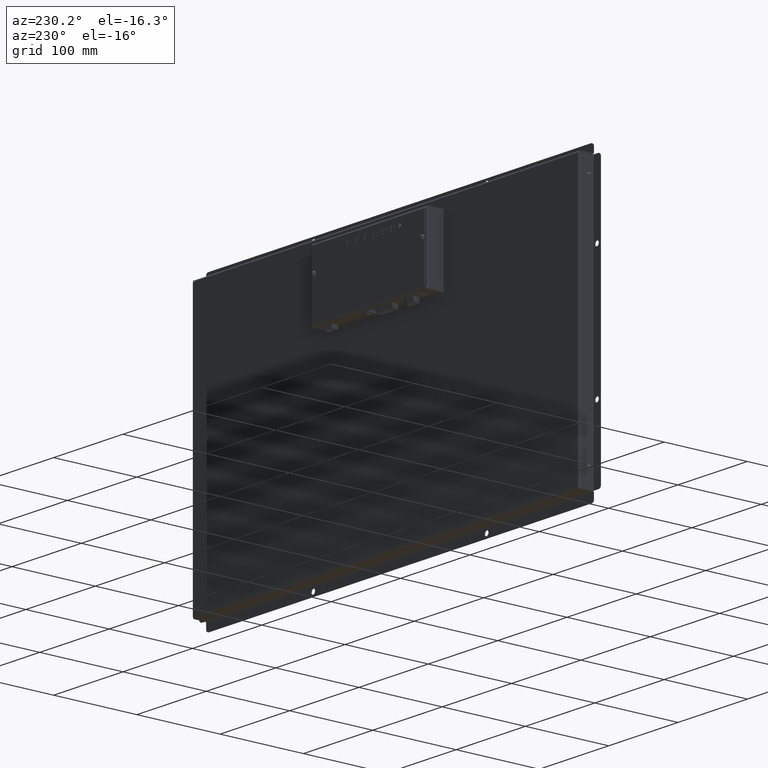
[diagram: clean part render]
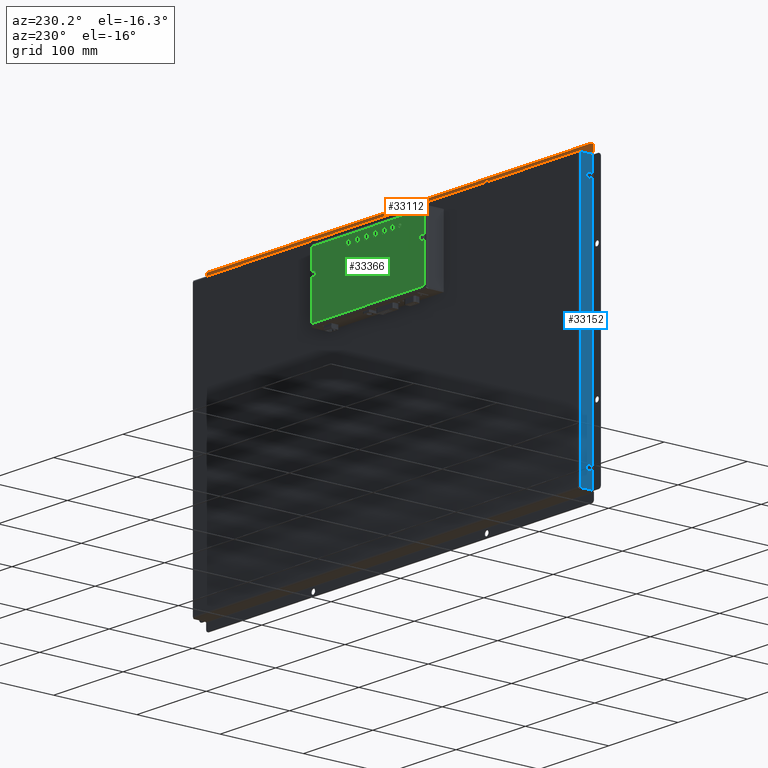
[diagram: same view with three faces highlighted in distinct colors, each labeled with its STEP entity id]
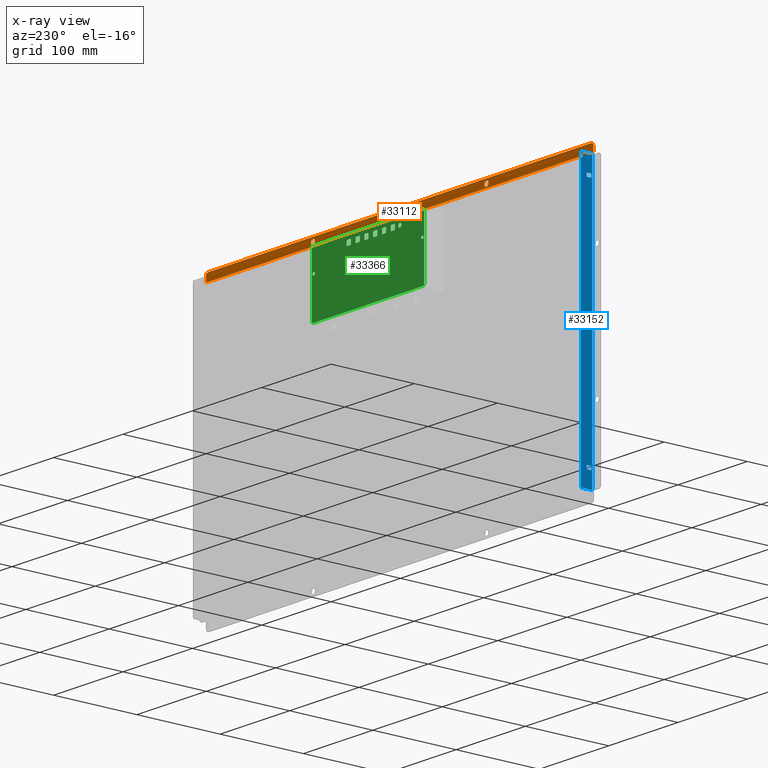
[diagram: x-ray of the same camera — body ghosted, the three highlighted faces saturated]
A machine part, auxiliary view with three faces highlighted in distinct colors.
The next image is the same camera in x-ray (body ghosted, the three faces saturated) — at least one of them is partly hidden behind the body in this view.
Their STEP definitions:

[orange] entity #33112 — the highlighted planar face has unit normal (0, 1, 0).
#1282=FACE_BOUND('',#3597,.T.);
#1283=FACE_BOUND('',#3598,.T.);
#1709=FACE_OUTER_BOUND('',#3596,.T.);
#3596=EDGE_LOOP('',(#21834,#21835,#21836,#21837,#21838,#21839));
#3597=EDGE_LOOP('',(#21840));
#3598=EDGE_LOOP('',(#21841));
#5885=LINE('',#48627,#9038);
#5888=LINE('',#48633,#9041);
#5889=LINE('',#48635,#9042);
#5890=LINE('',#48637,#9043);
#9038=VECTOR('',#39291,10.);
#9041=VECTOR('',#39296,10.);
#9042=VECTOR('',#39297,10.);
#9043=VECTOR('',#39298,10.);
#12035=CIRCLE('',#35566,3.);
#12038=CIRCLE('',#35570,3.);
#12056=CIRCLE('',#35600,3.);
#12057=CIRCLE('',#35603,3.);
#13493=VERTEX_POINT('',#48527);
#13496=VERTEX_POINT('',#48535);
#13528=VERTEX_POINT('',#48620);
#13529=VERTEX_POINT('',#48622);
#13530=VERTEX_POINT('',#48626);
#13532=VERTEX_POINT('',#48632);
#13533=VERTEX_POINT('',#48634);
#13534=VERTEX_POINT('',#48636);
#16782=EDGE_CURVE('',#13493,#13493,#12035,.T.);
#16786=EDGE_CURVE('',#13496,#13496,#12038,.T.);
#16827=EDGE_CURVE('',#13528,#13529,#12056,.T.);
#16829=EDGE_CURVE('',#13530,#13529,#5885,.T.);
#16832=EDGE_CURVE('',#13532,#13528,#5888,.T.);
#16833=EDGE_CURVE('',#13532,#13533,#5889,.T.);
#16834=EDGE_CURVE('',#13533,#13534,#5890,.T.);
#16835=EDGE_CURVE('',#13530,#13534,#12057,.T.);
#21834=ORIENTED_EDGE('',*,*,#16827,.F.);
#21835=ORIENTED_EDGE('',*,*,#16832,.F.);
#21836=ORIENTED_EDGE('',*,*,#16833,.T.);
#21837=ORIENTED_EDGE('',*,*,#16834,.T.);
#21838=ORIENTED_EDGE('',*,*,#16835,.F.);
#21839=ORIENTED_EDGE('',*,*,#16829,.T.);
#21840=ORIENTED_EDGE('',*,*,#16782,.T.);
#21841=ORIENTED_EDGE('',*,*,#16786,.T.);
#30738=PLANE('',#35602);
#33112=ADVANCED_FACE('',(#1709,#1282,#1283),#30738,.T.);
#35566=AXIS2_PLACEMENT_3D('',#48529,#39194,#39195);
#35570=AXIS2_PLACEMENT_3D('',#48537,#39203,#39204);
#35600=AXIS2_PLACEMENT_3D('',#48623,#39286,#39287);
#35602=AXIS2_PLACEMENT_3D('',#48631,#39294,#39295);
#35603=AXIS2_PLACEMENT_3D('',#48638,#39299,#39300);
#39194=DIRECTION('center_axis',(-3.84474391424396E-16,-3.09974164042484E-14,
-1.));
#39195=DIRECTION('ref_axis',(1.,-7.41513365530766E-31,3.82358215767803E-19));
#39203=DIRECTION('center_axis',(-3.84474391424396E-16,-3.09974164042484E-14,
-1.));
#39204=DIRECTION('ref_axis',(1.,-7.41513365530766E-31,3.82358215767803E-19));
#39286=DIRECTION('center_axis',(-3.84474391424396E-16,-3.09974164042484E-14,
-1.));
#39287=DIRECTION('ref_axis',(-0.707106781186589,0.707106781186506,-2.19812944215738E-14));
#39291=DIRECTION('',(-1.,-3.84474391424387E-16,3.84474391424408E-16));
#39294=DIRECTION('center_axis',(3.84474391424396E-16,3.09974164042484E-14,
1.));
#39295=DIRECTION('ref_axis',(3.84474391424399E-16,-1.,3.09974164042484E-14));
#39296=DIRECTION('',(-1.10329574491398E-13,1.,-2.46494594083834E-14));
#39297=DIRECTION('',(1.,3.84474391424387E-16,-3.84474391424408E-16));
#39298=DIRECTION('',(4.67348542228502E-14,1.,-2.46494594083835E-14));
#39299=DIRECTION('center_axis',(-3.84474391424396E-16,-3.09974164042484E-14,
-1.));
#39300=DIRECTION('ref_axis',(0.707106781186547,0.707106781186547,-2.19812944215725E-14));
#48527=CARTESIAN_POINT('',(-128.,168.,-16.0000000000001));
#48529=CARTESIAN_POINT('Origin',(-125.,168.,-16.0000000000001));
#48535=CARTESIAN_POINT('',(122.,168.,-16.0000000000001));
#48537=CARTESIAN_POINT('Origin',(125.,168.,-16.0000000000001));
#48620=CARTESIAN_POINT('',(-279.,169.999999999999,-16.));
#48622=CARTESIAN_POINT('',(-276.,173.,-16.0000000000001));
#48623=CARTESIAN_POINT('Origin',(-276.,170.,-16.));
#48626=CARTESIAN_POINT('',(276.,173.,-16.0000000000003));
#48627=CARTESIAN_POINT('',(279.,173.,-16.0000000000003));
#48631=CARTESIAN_POINT('Origin',(2.04744808841653E-13,167.169026644708,
-16.));
#48632=CARTESIAN_POINT('',(-279.,163.6,-15.9999999999998));
#48633=CARTESIAN_POINT('',(-279.,161.338053289415,-15.9999999999998));
#48634=CARTESIAN_POINT('',(279.,163.6,-16.));
#48635=CARTESIAN_POINT('',(2.0944767726273E-13,163.6,-15.9999999999999));
#48636=CARTESIAN_POINT('',(279.,170.,-16.0000000000002));
#48637=CARTESIAN_POINT('',(279.,161.338053289415,-16.));
#48638=CARTESIAN_POINT('Origin',(276.,170.,-16.0000000000002));

[blue] entity #33152 — the highlighted planar face has unit normal (-1, 0, -0).
#1294=FACE_BOUND('',#3649,.T.);
#1295=FACE_BOUND('',#3650,.T.);
#1749=FACE_OUTER_BOUND('',#3648,.T.);
#3648=EDGE_LOOP('',(#22026,#22027,#22028,#22029));
#3649=EDGE_LOOP('',(#22030,#22031,#22032,#22033,#22034,#22035,#22036,#22037));
#3650=EDGE_LOOP('',(#22038,#22039,#22040,#22041,#22042,#22043,#22044,#22045));
#5715=LINE('',#48031,#8868);
#5719=LINE('',#48043,#8872);
#5723=LINE('',#48055,#8876);
#5727=LINE('',#48066,#8880);
#5731=LINE('',#48079,#8884);
#5735=LINE('',#48091,#8888);
#5739=LINE('',#48103,#8892);
#5743=LINE('',#48114,#8896);
#5940=LINE('',#48775,#9093);
#5948=LINE('',#48800,#9101);
#5951=LINE('',#48806,#9104);
#5952=LINE('',#48807,#9105);
#8868=VECTOR('',#38685,10.);
#8872=VECTOR('',#38697,10.);
#8876=VECTOR('',#38709,10.);
#8880=VECTOR('',#38721,10.);
#8884=VECTOR('',#38733,10.);
#8888=VECTOR('',#38745,10.);
#8892=VECTOR('',#38757,10.);
#8896=VECTOR('',#38769,10.);
#9093=VECTOR('',#39450,10.);
#9101=VECTOR('',#39480,10.);
#9104=VECTOR('',#39485,10.);
#9105=VECTOR('',#39486,10.);
#11928=CIRCLE('',#35381,1.);
#11930=CIRCLE('',#35385,1.);
#11932=CIRCLE('',#35389,1.);
#11934=CIRCLE('',#35393,1.);
#11936=CIRCLE('',#35397,1.);
#11938=CIRCLE('',#35401,1.);
#11940=CIRCLE('',#35405,1.);
#11942=CIRCLE('',#35409,1.);
#13318=VERTEX_POINT('',#48021);
#13319=VERTEX_POINT('',#48022);
#13322=VERTEX_POINT('',#48030);
#13324=VERTEX_POINT('',#48036);
#13326=VERTEX_POINT('',#48042);
#13328=VERTEX_POINT('',#48048);
#13330=VERTEX_POINT('',#48054);
#13332=VERTEX_POINT('',#48060);
#13334=VERTEX_POINT('',#48069);
#13335=VERTEX_POINT('',#48070);
#13338=VERTEX_POINT('',#48078);
#13340=VERTEX_POINT('',#48084);
#13342=VERTEX_POINT('',#48090);
#13344=VERTEX_POINT('',#48096);
#13346=VERTEX_POINT('',#48102);
#13348=VERTEX_POINT('',#48108);
#13570=VERTEX_POINT('',#48766);
#13571=VERTEX_POINT('',#48770);
#13577=VERTEX_POINT('',#48799);
#13579=VERTEX_POINT('',#48805);
#16528=EDGE_CURVE('',#13318,#13319,#11928,.T.);
#16532=EDGE_CURVE('',#13322,#13318,#5715,.T.);
#16535=EDGE_CURVE('',#13324,#13322,#11930,.T.);
#16538=EDGE_CURVE('',#13326,#13324,#5719,.T.);
#16541=EDGE_CURVE('',#13328,#13326,#11932,.T.);
#16544=EDGE_CURVE('',#13330,#13328,#5723,.T.);
#16547=EDGE_CURVE('',#13332,#13330,#11934,.T.);
#16550=EDGE_CURVE('',#13319,#13332,#5727,.T.);
#16552=EDGE_CURVE('',#13334,#13335,#11936,.T.);
#16556=EDGE_CURVE('',#13338,#13334,#5731,.T.);
#16559=EDGE_CURVE('',#13340,#13338,#11938,.T.);
#16562=EDGE_CURVE('',#13342,#13340,#5735,.T.);
#16565=EDGE_CURVE('',#13344,#13342,#11940,.T.);
#16568=EDGE_CURVE('',#13346,#13344,#5739,.T.);
#16571=EDGE_CURVE('',#13348,#13346,#11942,.T.);
#16574=EDGE_CURVE('',#13335,#13348,#5743,.T.);
#16903=EDGE_CURVE('',#13570,#13571,#5940,.T.);
#16915=EDGE_CURVE('',#13570,#13577,#5948,.T.);
#16918=EDGE_CURVE('',#13571,#13579,#5951,.T.);
#16919=EDGE_CURVE('',#13579,#13577,#5952,.T.);
#22026=ORIENTED_EDGE('',*,*,#16903,.T.);
#22027=ORIENTED_EDGE('',*,*,#16918,.T.);
#22028=ORIENTED_EDGE('',*,*,#16919,.T.);
#22029=ORIENTED_EDGE('',*,*,#16915,.F.);
#22030=ORIENTED_EDGE('',*,*,#16528,.T.);
#22031=ORIENTED_EDGE('',*,*,#16550,.T.);
#22032=ORIENTED_EDGE('',*,*,#16547,.T.);
#22033=ORIENTED_EDGE('',*,*,#16544,.T.);
#22034=ORIENTED_EDGE('',*,*,#16541,.T.);
#22035=ORIENTED_EDGE('',*,*,#16538,.T.);
#22036=ORIENTED_EDGE('',*,*,#16535,.T.);
#22037=ORIENTED_EDGE('',*,*,#16532,.T.);
#22038=ORIENTED_EDGE('',*,*,#16552,.T.);
#22039=ORIENTED_EDGE('',*,*,#16574,.T.);
#22040=ORIENTED_EDGE('',*,*,#16571,.T.);
#22041=ORIENTED_EDGE('',*,*,#16568,.T.);
#22042=ORIENTED_EDGE('',*,*,#16565,.T.);
#22043=ORIENTED_EDGE('',*,*,#16562,.T.);
#22044=ORIENTED_EDGE('',*,*,#16559,.T.);
#22045=ORIENTED_EDGE('',*,*,#16556,.T.);
#30766=PLANE('',#35665);
#33152=ADVANCED_FACE('',(#1749,#1294,#1295),#30766,.T.);
#35381=AXIS2_PLACEMENT_3D('',#48023,#38677,#38678);
#35385=AXIS2_PLACEMENT_3D('',#48037,#38690,#38691);
#35389=AXIS2_PLACEMENT_3D('',#48049,#38702,#38703);
#35393=AXIS2_PLACEMENT_3D('',#48061,#38714,#38715);
#35397=AXIS2_PLACEMENT_3D('',#48071,#38725,#38726);
#35401=AXIS2_PLACEMENT_3D('',#48085,#38738,#38739);
#35405=AXIS2_PLACEMENT_3D('',#48097,#38750,#38751);
#35409=AXIS2_PLACEMENT_3D('',#48109,#38762,#38763);
#35665=AXIS2_PLACEMENT_3D('',#48804,#39483,#39484);
#38677=DIRECTION('center_axis',(-1.,5.65645038078669E-16,-3.51218148744263E-15));
#38678=DIRECTION('ref_axis',(-7.39557098644699E-31,-1.,2.22560188373E-16));
#38685=DIRECTION('',(-5.6564503807867E-16,-1.,2.22560188372998E-16));
#38690=DIRECTION('center_axis',(-1.,5.65645038078669E-16,-3.51218148744263E-15));
#38691=DIRECTION('ref_axis',(3.33066907387542E-15,-2.22560188373E-16,-1.));
#38697=DIRECTION('',(3.51218148744263E-15,-1.33278321299816E-15,-1.));
#38702=DIRECTION('center_axis',(-1.,5.65645038078669E-16,-3.51218148744263E-15));
#38703=DIRECTION('ref_axis',(7.39557098644699E-31,1.,-2.22560188373E-16));
#38709=DIRECTION('',(5.65645038078672E-16,1.,-7.77671700685577E-16));
#38714=DIRECTION('center_axis',(-1.,5.65645038078669E-16,-3.51218148744263E-15));
#38715=DIRECTION('ref_axis',(-3.33066907387542E-15,2.22560188373E-16,1.));
#38721=DIRECTION('',(-3.51218148744263E-15,-3.32551323939578E-16,1.));
#38725=DIRECTION('center_axis',(-1.,5.65645038078669E-16,-3.51218148744263E-15));
#38726=DIRECTION('ref_axis',(-7.39557098644699E-31,-1.,2.22560188373E-16));
#38733=DIRECTION('',(-5.65645038078666E-16,-1.,-8.87662836252182E-16));
#38738=DIRECTION('center_axis',(-1.,5.65645038078669E-16,-3.51218148744263E-15));
#38739=DIRECTION('ref_axis',(3.33066907387542E-15,-2.22560188373E-16,-1.));
#38745=DIRECTION('',(3.51218148744263E-15,-2.22560188373E-16,-1.));
#38750=DIRECTION('center_axis',(-1.,5.65645038078669E-16,-3.51218148744263E-15));
#38751=DIRECTION('ref_axis',(7.39557098644699E-31,1.,-2.22560188373E-16));
#38757=DIRECTION('',(5.65645038078672E-16,1.,-7.77671700685589E-16));
#38762=DIRECTION('center_axis',(-1.,5.65645038078669E-16,-3.51218148744263E-15));
#38763=DIRECTION('ref_axis',(-3.33066907387542E-15,2.22560188373E-16,1.));
#38769=DIRECTION('',(-3.51218148744263E-15,2.22560188373E-16,1.));
#39450=DIRECTION('',(5.6564503807867E-16,1.,-2.19982271133159E-16));
#39480=DIRECTION('',(-2.22044604925032E-15,-2.44249065417535E-14,1.));
#39483=DIRECTION('center_axis',(1.,-5.65645038078669E-16,3.51218148744263E-15));
#39484=DIRECTION('ref_axis',(3.51218148744263E-15,3.29769215235194E-16,
-1.));
#39485=DIRECTION('',(5.10702591327543E-14,3.5527136788003E-14,1.));
#39486=DIRECTION('',(-5.65645038078669E-16,-1.,-1.27144212204358E-30));
#48021=CARTESIAN_POINT('',(279.,-141.599999999999,-13.9999999999906));
#48022=CARTESIAN_POINT('',(279.,-142.599999999999,-12.9999999999906));
#48023=CARTESIAN_POINT('Origin',(279.,-141.599999999999,-12.9999999999906));
#48030=CARTESIAN_POINT('',(279.,-139.599999999999,-13.9999999999906));
#48031=CARTESIAN_POINT('',(279.,-69.7999999999997,-13.9999999999906));
#48036=CARTESIAN_POINT('',(279.,-138.599999999999,-12.9999999999906));
#48037=CARTESIAN_POINT('Origin',(279.,-139.599999999999,-12.9999999999906));
#48042=CARTESIAN_POINT('',(279.,-138.599999999999,-8.99999999999055));
#48043=CARTESIAN_POINT('',(279.,-138.599999999999,-8.43451332234901));
#48048=CARTESIAN_POINT('',(279.,-139.599999999999,-7.99999999999056));
#48049=CARTESIAN_POINT('Origin',(279.,-139.599999999999,-8.99999999999055));
#48054=CARTESIAN_POINT('',(279.,-141.599999999999,-7.99999999999055));
#48055=CARTESIAN_POINT('',(279.,-70.7999999999997,-7.99999999999061));
#48060=CARTESIAN_POINT('',(279.,-142.599999999999,-8.99999999999055));
#48061=CARTESIAN_POINT('Origin',(279.,-141.599999999999,-8.99999999999055));
#48066=CARTESIAN_POINT('',(279.,-142.599999999999,-10.4345133223491));
#48069=CARTESIAN_POINT('',(279.,139.6,-14.0000000000081));
#48070=CARTESIAN_POINT('',(279.,138.6,-13.0000000000081));
#48071=CARTESIAN_POINT('Origin',(279.,139.6,-13.0000000000081));
#48078=CARTESIAN_POINT('',(279.,141.6,-14.0000000000081));
#48079=CARTESIAN_POINT('',(279.,70.7999999999998,-14.0000000000081));
#48084=CARTESIAN_POINT('',(279.,142.6,-13.0000000000081));
#48085=CARTESIAN_POINT('Origin',(279.,141.6,-13.0000000000081));
#48090=CARTESIAN_POINT('',(279.,142.6,-8.99999999999062));
#48091=CARTESIAN_POINT('',(279.,142.6,-8.43451332234915));
#48096=CARTESIAN_POINT('',(279.,141.6,-7.99999999999062));
#48097=CARTESIAN_POINT('Origin',(279.,141.6,-8.99999999999062));
#48102=CARTESIAN_POINT('',(279.,139.6,-7.99999999999061));
#48103=CARTESIAN_POINT('',(279.,69.7999999999999,-7.99999999999056));
#48108=CARTESIAN_POINT('',(279.,138.6,-8.99999999999062));
#48109=CARTESIAN_POINT('Origin',(279.,139.6,-8.99999999999062));
#48114=CARTESIAN_POINT('',(279.,138.6,-10.4345133223579));
#48766=CARTESIAN_POINT('',(279.,-161.5,-14.9999999999999));
#48770=CARTESIAN_POINT('',(279.,161.5,-15.));
#48775=CARTESIAN_POINT('',(279.,80.7499999999998,-15.));
#48799=CARTESIAN_POINT('',(279.,-161.5,-0.999999999999958));
#48800=CARTESIAN_POINT('',(279.,-161.5,-0.999999999999981));
#48804=CARTESIAN_POINT('Origin',(279.,5.23116115953699E-14,-7.86902664470766));
#48805=CARTESIAN_POINT('',(279.,161.500000000001,-1.00000000000003));
#48806=CARTESIAN_POINT('',(279.000000000001,161.5,-0.999999999999074));
#48807=CARTESIAN_POINT('',(279.,2.57599913520536E-14,-0.999999999999979));

[green] entity #33366 — the highlighted planar face has unit normal (0, 1, -0).
#1359=FACE_BOUND('',#3928,.T.);
#1360=FACE_BOUND('',#3929,.T.);
#1361=FACE_BOUND('',#3930,.T.);
#1362=FACE_BOUND('',#3931,.T.);
#1363=FACE_BOUND('',#3932,.T.);
#1364=FACE_BOUND('',#3933,.T.);
#1365=FACE_BOUND('',#3934,.T.);
#1366=FACE_BOUND('',#3935,.T.);
#1367=FACE_BOUND('',#3936,.T.);
#1963=FACE_OUTER_BOUND('',#3927,.T.);
#3927=EDGE_LOOP('',(#23293,#23294,#23295,#23296,#23297,#23298,#23299,#23300));
#3928=EDGE_LOOP('',(#23301,#23302,#23303,#23304,#23305,#23306,#23307,#23308));
#3929=EDGE_LOOP('',(#23309,#23310,#23311,#23312,#23313,#23314,#23315,#23316));
#3930=EDGE_LOOP('',(#23317,#23318,#23319,#23320,#23321,#23322,#23323,#23324));
#3931=EDGE_LOOP('',(#23325));
#3932=EDGE_LOOP('',(#23326,#23327,#23328,#23329,#23330,#23331,#23332,#23333));
#3933=EDGE_LOOP('',(#23334,#23335,#23336,#23337,#23338,#23339,#23340,#23341));
#3934=EDGE_LOOP('',(#23342,#23343,#23344,#23345,#23346,#23347,#23348,#23349));
#3935=EDGE_LOOP('',(#23350));
#3936=EDGE_LOOP('',(#23351));
#6210=LINE('',#50481,#9363);
#6216=LINE('',#50496,#9369);
#6218=LINE('',#50505,#9371);
#6223=LINE('',#50517,#9376);
#6226=LINE('',#50529,#9379);
#6232=LINE('',#50544,#9385);
#6234=LINE('',#50553,#9387);
#6239=LINE('',#50565,#9392);
#6242=LINE('',#50577,#9395);
#6248=LINE('',#50592,#9401);
#6250=LINE('',#50601,#9403);
#6255=LINE('',#50613,#9408);
#6258=LINE('',#50625,#9411);
#6264=LINE('',#50640,#9417);
#6266=LINE('',#50649,#9419);
#6271=LINE('',#50661,#9424);
#6274=LINE('',#50673,#9427);
#6280=LINE('',#50688,#9433);
#6282=LINE('',#50697,#9435);
#6287=LINE('',#50709,#9440);
#6290=LINE('',#50721,#9443);
#6296=LINE('',#50736,#9449);
#6298=LINE('',#50745,#9451);
#6303=LINE('',#50757,#9456);
#6309=LINE('',#50778,#9462);
#6315=LINE('',#50802,#9468);
#6318=LINE('',#50810,#9471);
#6322=LINE('',#50824,#9475);
#9363=VECTOR('',#40190,10.);
#9369=VECTOR('',#40204,10.);
#9371=VECTOR('',#40214,10.);
#9376=VECTOR('',#40227,10.);
#9379=VECTOR('',#40238,10.);
#9385=VECTOR('',#40252,10.);
#9387=VECTOR('',#40262,10.);
#9392=VECTOR('',#40275,10.);
#9395=VECTOR('',#40286,10.);
#9401=VECTOR('',#40300,10.);
#9403=VECTOR('',#40310,10.);
#9408=VECTOR('',#40323,10.);
#9411=VECTOR('',#40334,10.);
#9417=VECTOR('',#40348,10.);
#9419=VECTOR('',#40358,10.);
#9424=VECTOR('',#40371,10.);
#9427=VECTOR('',#40382,10.);
#9433=VECTOR('',#40396,10.);
#9435=VECTOR('',#40406,10.);
#9440=VECTOR('',#40419,10.);
#9443=VECTOR('',#40430,10.);
#9449=VECTOR('',#40444,10.);
#9451=VECTOR('',#40454,10.);
#9456=VECTOR('',#40467,10.);
#9462=VECTOR('',#40487,10.);
#9468=VECTOR('',#40511,10.);
#9471=VECTOR('',#40520,10.);
#9475=VECTOR('',#40538,10.);
#12168=CIRCLE('',#35886,1.);
#12170=CIRCLE('',#35890,1.);
#12172=CIRCLE('',#35894,1.);
#12174=CIRCLE('',#35898,1.);
#12176=CIRCLE('',#35902,1.);
#12178=CIRCLE('',#35906,1.);
#12180=CIRCLE('',#35910,1.);
#12182=CIRCLE('',#35914,1.);
#12184=CIRCLE('',#35918,1.);
#12186=CIRCLE('',#35922,1.);
#12188=CIRCLE('',#35926,1.);
#12190=CIRCLE('',#35930,1.);
#12192=CIRCLE('',#35934,1.);
#12194=CIRCLE('',#35938,1.);
#12196=CIRCLE('',#35942,1.);
#12198=CIRCLE('',#35946,1.);
#12200=CIRCLE('',#35950,1.);
#12202=CIRCLE('',#35954,1.);
#12204=CIRCLE('',#35958,1.);
#12206=CIRCLE('',#35962,1.);
#12208=CIRCLE('',#35966,1.);
#12210=CIRCLE('',#35970,1.);
#12212=CIRCLE('',#35974,1.);
#12214=CIRCLE('',#35978,1.);
#12216=CIRCLE('',#35982,2.25);
#12218=CIRCLE('',#35985,2.);
#12225=CIRCLE('',#35995,2.);
#12226=CIRCLE('',#35998,2.);
#12227=CIRCLE('',#36001,2.);
#12228=CIRCLE('',#36003,1.6);
#12229=CIRCLE('',#36005,1.6);
#13816=VERTEX_POINT('',#50471);
#13817=VERTEX_POINT('',#50472);
#13820=VERTEX_POINT('',#50480);
#13822=VERTEX_POINT('',#50486);
#13823=VERTEX_POINT('',#50487);
#13826=VERTEX_POINT('',#50498);
#13828=VERTEX_POINT('',#50504);
#13830=VERTEX_POINT('',#50510);
#13832=VERTEX_POINT('',#50519);
#13833=VERTEX_POINT('',#50520);
#13836=VERTEX_POINT('',#50528);
#13838=VERTEX_POINT('',#50534);
#13839=VERTEX_POINT('',#50535);
#13842=VERTEX_POINT('',#50546);
#13844=VERTEX_POINT('',#50552);
#13846=VERTEX_POINT('',#50558);
#13848=VERTEX_POINT('',#50567);
#13849=VERTEX_POINT('',#50568);
#13852=VERTEX_POINT('',#50576);
#13854=VERTEX_POINT('',#50582);
#13855=VERTEX_POINT('',#50583);
#13858=VERTEX_POINT('',#50594);
#13860=VERTEX_POINT('',#50600);
#13862=VERTEX_POINT('',#50606);
#13864=VERTEX_POINT('',#50615);
#13865=VERTEX_POINT('',#50616);
#13868=VERTEX_POINT('',#50624);
#13870=VERTEX_POINT('',#50630);
#13871=VERTEX_POINT('',#50631);
#13874=VERTEX_POINT('',#50642);
#13876=VERTEX_POINT('',#50648);
#13878=VERTEX_POINT('',#50654);
#13880=VERTEX_POINT('',#50663);
#13881=VERTEX_POINT('',#50664);
#13884=VERTEX_POINT('',#50672);
#13886=VERTEX_POINT('',#50678);
#13887=VERTEX_POINT('',#50679);
#13890=VERTEX_POINT('',#50690);
#13892=VERTEX_POINT('',#50696);
#13894=VERTEX_POINT('',#50702);
#13896=VERTEX_POINT('',#50711);
#13897=VERTEX_POINT('',#50712);
#13900=VERTEX_POINT('',#50720);
#13902=VERTEX_POINT('',#50726);
#13903=VERTEX_POINT('',#50727);
#13906=VERTEX_POINT('',#50738);
#13908=VERTEX_POINT('',#50744);
#13910=VERTEX_POINT('',#50750);
#13912=VERTEX_POINT('',#50759);
#13914=VERTEX_POINT('',#50765);
#13915=VERTEX_POINT('',#50766);
#13919=VERTEX_POINT('',#50776);
#13927=VERTEX_POINT('',#50796);
#13928=VERTEX_POINT('',#50800);
#13929=VERTEX_POINT('',#50804);
#13930=VERTEX_POINT('',#50808);
#13931=VERTEX_POINT('',#50812);
#13932=VERTEX_POINT('',#50816);
#13933=VERTEX_POINT('',#50820);
#17311=EDGE_CURVE('',#13816,#13817,#12168,.T.);
#17315=EDGE_CURVE('',#13820,#13817,#6210,.T.);
#17318=EDGE_CURVE('',#13822,#13823,#12170,.T.);
#17323=EDGE_CURVE('',#13816,#13823,#6216,.T.);
#17324=EDGE_CURVE('',#13820,#13826,#12172,.T.);
#17327=EDGE_CURVE('',#13828,#13826,#6218,.T.);
#17330=EDGE_CURVE('',#13828,#13830,#12174,.T.);
#17334=EDGE_CURVE('',#13822,#13830,#6223,.T.);
#17335=EDGE_CURVE('',#13832,#13833,#12176,.T.);
#17339=EDGE_CURVE('',#13836,#13833,#6226,.T.);
#17342=EDGE_CURVE('',#13838,#13839,#12178,.T.);
#17347=EDGE_CURVE('',#13832,#13839,#6232,.T.);
#17348=EDGE_CURVE('',#13836,#13842,#12180,.T.);
#17351=EDGE_CURVE('',#13844,#13842,#6234,.T.);
#17354=EDGE_CURVE('',#13844,#13846,#12182,.T.);
#17358=EDGE_CURVE('',#13838,#13846,#6239,.T.);
#17359=EDGE_CURVE('',#13848,#13849,#12184,.T.);
#17363=EDGE_CURVE('',#13852,#13849,#6242,.T.);
#17366=EDGE_CURVE('',#13854,#13855,#12186,.T.);
#17371=EDGE_CURVE('',#13848,#13855,#6248,.T.);
#17372=EDGE_CURVE('',#13852,#13858,#12188,.T.);
#17375=EDGE_CURVE('',#13860,#13858,#6250,.T.);
#17378=EDGE_CURVE('',#13860,#13862,#12190,.T.);
#17382=EDGE_CURVE('',#13854,#13862,#6255,.T.);
#17383=EDGE_CURVE('',#13864,#13865,#12192,.T.);
#17387=EDGE_CURVE('',#13868,#13865,#6258,.T.);
#17390=EDGE_CURVE('',#13870,#13871,#12194,.T.);
#17395=EDGE_CURVE('',#13864,#13871,#6264,.T.);
#17396=EDGE_CURVE('',#13868,#13874,#12196,.T.);
#17399=EDGE_CURVE('',#13876,#13874,#6266,.T.);
#17402=EDGE_CURVE('',#13876,#13878,#12198,.T.);
#17406=EDGE_CURVE('',#13870,#13878,#6271,.T.);
#17407=EDGE_CURVE('',#13880,#13881,#12200,.T.);
#17411=EDGE_CURVE('',#13884,#13881,#6274,.T.);
#17414=EDGE_CURVE('',#13886,#13887,#12202,.T.);
#17419=EDGE_CURVE('',#13880,#13887,#6280,.T.);
#17420=EDGE_CURVE('',#13884,#13890,#12204,.T.);
#17423=EDGE_CURVE('',#13892,#13890,#6282,.T.);
#17426=EDGE_CURVE('',#13892,#13894,#12206,.T.);
#17430=EDGE_CURVE('',#13886,#13894,#6287,.T.);
#17431=EDGE_CURVE('',#13896,#13897,#12208,.T.);
#17435=EDGE_CURVE('',#13900,#13897,#6290,.T.);
#17438=EDGE_CURVE('',#13902,#13903,#12210,.T.);
#17443=EDGE_CURVE('',#13896,#13903,#6296,.T.);
#17444=EDGE_CURVE('',#13900,#13906,#12212,.T.);
#17447=EDGE_CURVE('',#13908,#13906,#6298,.T.);
#17450=EDGE_CURVE('',#13908,#13910,#12214,.T.);
#17454=EDGE_CURVE('',#13902,#13910,#6303,.T.);
#17455=EDGE_CURVE('',#13912,#13912,#12216,.T.);
#17458=EDGE_CURVE('',#13914,#13915,#12218,.T.);
#17464=EDGE_CURVE('',#13919,#13914,#6309,.T.);
#17473=EDGE_CURVE('',#13927,#13919,#12225,.T.);
#17476=EDGE_CURVE('',#13928,#13927,#6315,.T.);
#17477=EDGE_CURVE('',#13929,#13928,#12226,.T.);
#17480=EDGE_CURVE('',#13930,#13929,#6318,.T.);
#17481=EDGE_CURVE('',#13931,#13930,#12227,.T.);
#17484=EDGE_CURVE('',#13932,#13932,#12228,.T.);
#17486=EDGE_CURVE('',#13933,#13933,#12229,.T.);
#17487=EDGE_CURVE('',#13915,#13931,#6322,.T.);
#23293=ORIENTED_EDGE('',*,*,#17458,.F.);
#23294=ORIENTED_EDGE('',*,*,#17464,.F.);
#23295=ORIENTED_EDGE('',*,*,#17473,.F.);
#23296=ORIENTED_EDGE('',*,*,#17476,.F.);
#23297=ORIENTED_EDGE('',*,*,#17477,.F.);
#23298=ORIENTED_EDGE('',*,*,#17480,.F.);
#23299=ORIENTED_EDGE('',*,*,#17481,.F.);
#23300=ORIENTED_EDGE('',*,*,#17487,.F.);
#23301=ORIENTED_EDGE('',*,*,#17447,.T.);
#23302=ORIENTED_EDGE('',*,*,#17444,.F.);
#23303=ORIENTED_EDGE('',*,*,#17435,.T.);
#23304=ORIENTED_EDGE('',*,*,#17431,.F.);
#23305=ORIENTED_EDGE('',*,*,#17443,.T.);
#23306=ORIENTED_EDGE('',*,*,#17438,.F.);
#23307=ORIENTED_EDGE('',*,*,#17454,.T.);
#23308=ORIENTED_EDGE('',*,*,#17450,.F.);
#23309=ORIENTED_EDGE('',*,*,#17423,.T.);
#23310=ORIENTED_EDGE('',*,*,#17420,.F.);
#23311=ORIENTED_EDGE('',*,*,#17411,.T.);
#23312=ORIENTED_EDGE('',*,*,#17407,.F.);
#23313=ORIENTED_EDGE('',*,*,#17419,.T.);
#23314=ORIENTED_EDGE('',*,*,#17414,.F.);
#23315=ORIENTED_EDGE('',*,*,#17430,.T.);
#23316=ORIENTED_EDGE('',*,*,#17426,.F.);
#23317=ORIENTED_EDGE('',*,*,#17399,.T.);
#23318=ORIENTED_EDGE('',*,*,#17396,.F.);
#23319=ORIENTED_EDGE('',*,*,#17387,.T.);
#23320=ORIENTED_EDGE('',*,*,#17383,.F.);
#23321=ORIENTED_EDGE('',*,*,#17395,.T.);
#23322=ORIENTED_EDGE('',*,*,#17390,.F.);
#23323=ORIENTED_EDGE('',*,*,#17406,.T.);
#23324=ORIENTED_EDGE('',*,*,#17402,.F.);
#23325=ORIENTED_EDGE('',*,*,#17455,.T.);
#23326=ORIENTED_EDGE('',*,*,#17375,.T.);
#23327=ORIENTED_EDGE('',*,*,#17372,.F.);
#23328=ORIENTED_EDGE('',*,*,#17363,.T.);
#23329=ORIENTED_EDGE('',*,*,#17359,.F.);
#23330=ORIENTED_EDGE('',*,*,#17371,.T.);
#23331=ORIENTED_EDGE('',*,*,#17366,.F.);
#23332=ORIENTED_EDGE('',*,*,#17382,.T.);
#23333=ORIENTED_EDGE('',*,*,#17378,.F.);
#23334=ORIENTED_EDGE('',*,*,#17351,.T.);
#23335=ORIENTED_EDGE('',*,*,#17348,.F.);
#23336=ORIENTED_EDGE('',*,*,#17339,.T.);
#23337=ORIENTED_EDGE('',*,*,#17335,.F.);
#23338=ORIENTED_EDGE('',*,*,#17347,.T.);
#23339=ORIENTED_EDGE('',*,*,#17342,.F.);
#23340=ORIENTED_EDGE('',*,*,#17358,.T.);
#23341=ORIENTED_EDGE('',*,*,#17354,.F.);
#23342=ORIENTED_EDGE('',*,*,#17327,.T.);
#23343=ORIENTED_EDGE('',*,*,#17324,.F.);
#23344=ORIENTED_EDGE('',*,*,#17315,.T.);
#23345=ORIENTED_EDGE('',*,*,#17311,.F.);
#23346=ORIENTED_EDGE('',*,*,#17323,.T.);
#23347=ORIENTED_EDGE('',*,*,#17318,.F.);
#23348=ORIENTED_EDGE('',*,*,#17334,.T.);
#23349=ORIENTED_EDGE('',*,*,#17330,.F.);
#23350=ORIENTED_EDGE('',*,*,#17484,.T.);
#23351=ORIENTED_EDGE('',*,*,#17486,.T.);
#30872=PLANE('',#36007);
#33366=ADVANCED_FACE('',(#1963,#1359,#1360,#1361,#1362,#1363,#1364,#1365,
#1366,#1367),#30872,.T.);
#35886=AXIS2_PLACEMENT_3D('',#50473,#40182,#40183);
#35890=AXIS2_PLACEMENT_3D('',#50488,#40195,#40196);
#35894=AXIS2_PLACEMENT_3D('',#50499,#40207,#40208);
#35898=AXIS2_PLACEMENT_3D('',#50511,#40219,#40220);
#35902=AXIS2_PLACEMENT_3D('',#50521,#40230,#40231);
#35906=AXIS2_PLACEMENT_3D('',#50536,#40243,#40244);
#35910=AXIS2_PLACEMENT_3D('',#50547,#40255,#40256);
#35914=AXIS2_PLACEMENT_3D('',#50559,#40267,#40268);
#35918=AXIS2_PLACEMENT_3D('',#50569,#40278,#40279);
#35922=AXIS2_PLACEMENT_3D('',#50584,#40291,#40292);
#35926=AXIS2_PLACEMENT_3D('',#50595,#40303,#40304);
#35930=AXIS2_PLACEMENT_3D('',#50607,#40315,#40316);
#35934=AXIS2_PLACEMENT_3D('',#50617,#40326,#40327);
#35938=AXIS2_PLACEMENT_3D('',#50632,#40339,#40340);
#35942=AXIS2_PLACEMENT_3D('',#50643,#40351,#40352);
#35946=AXIS2_PLACEMENT_3D('',#50655,#40363,#40364);
#35950=AXIS2_PLACEMENT_3D('',#50665,#40374,#40375);
#35954=AXIS2_PLACEMENT_3D('',#50680,#40387,#40388);
#35958=AXIS2_PLACEMENT_3D('',#50691,#40399,#40400);
#35962=AXIS2_PLACEMENT_3D('',#50703,#40411,#40412);
#35966=AXIS2_PLACEMENT_3D('',#50713,#40422,#40423);
#35970=AXIS2_PLACEMENT_3D('',#50728,#40435,#40436);
#35974=AXIS2_PLACEMENT_3D('',#50739,#40447,#40448);
#35978=AXIS2_PLACEMENT_3D('',#50751,#40459,#40460);
#35982=AXIS2_PLACEMENT_3D('',#50760,#40470,#40471);
#35985=AXIS2_PLACEMENT_3D('',#50767,#40477,#40478);
#35995=AXIS2_PLACEMENT_3D('',#50797,#40505,#40506);
#35998=AXIS2_PLACEMENT_3D('',#50805,#40514,#40515);
#36001=AXIS2_PLACEMENT_3D('',#50813,#40523,#40524);
#36003=AXIS2_PLACEMENT_3D('',#50818,#40529,#40530);
#36005=AXIS2_PLACEMENT_3D('',#50822,#40534,#40535);
#36007=AXIS2_PLACEMENT_3D('',#50825,#40539,#40540);
#40182=DIRECTION('center_axis',(0.,0.,1.));
#40183=DIRECTION('ref_axis',(-0.707106781186551,-0.707106781186544,0.));
#40190=DIRECTION('',(-1.,0.,0.));
#40195=DIRECTION('center_axis',(0.,0.,1.));
#40196=DIRECTION('ref_axis',(-0.707106781186548,0.707106781186548,0.));
#40204=DIRECTION('',(0.,1.,0.));
#40207=DIRECTION('center_axis',(0.,0.,1.));
#40208=DIRECTION('ref_axis',(0.707106781186548,-0.707106781186548,0.));
#40214=DIRECTION('',(0.,-1.,0.));
#40219=DIRECTION('center_axis',(0.,0.,1.));
#40220=DIRECTION('ref_axis',(0.707106781186544,0.707106781186551,0.));
#40227=DIRECTION('',(1.,0.,0.));
#40230=DIRECTION('center_axis',(0.,0.,1.));
#40231=DIRECTION('ref_axis',(-0.707106781186549,-0.707106781186546,0.));
#40238=DIRECTION('',(-1.,0.,0.));
#40243=DIRECTION('center_axis',(0.,0.,1.));
#40244=DIRECTION('ref_axis',(-0.707106781186545,0.70710678118655,0.));
#40252=DIRECTION('',(0.,1.,0.));
#40255=DIRECTION('center_axis',(0.,0.,1.));
#40256=DIRECTION('ref_axis',(0.707106781186549,-0.707106781186546,0.));
#40262=DIRECTION('',(0.,-1.,0.));
#40267=DIRECTION('center_axis',(0.,0.,1.));
#40268=DIRECTION('ref_axis',(0.707106781186546,0.707106781186549,0.));
#40275=DIRECTION('',(1.,0.,0.));
#40278=DIRECTION('center_axis',(0.,0.,1.));
#40279=DIRECTION('ref_axis',(-0.707106781186549,-0.707106781186546,0.));
#40286=DIRECTION('',(-1.,0.,0.));
#40291=DIRECTION('center_axis',(0.,0.,1.));
#40292=DIRECTION('ref_axis',(-0.707106781186546,0.707106781186549,0.));
#40300=DIRECTION('',(0.,1.,0.));
#40303=DIRECTION('center_axis',(0.,0.,1.));
#40304=DIRECTION('ref_axis',(0.707106781186549,-0.707106781186546,0.));
#40310=DIRECTION('',(0.,-1.,0.));
#40315=DIRECTION('center_axis',(0.,0.,1.));
#40316=DIRECTION('ref_axis',(0.707106781186546,0.707106781186549,0.));
#40323=DIRECTION('',(1.,0.,0.));
#40326=DIRECTION('center_axis',(0.,0.,1.));
#40327=DIRECTION('ref_axis',(-0.707106781186548,-0.707106781186548,0.));
#40334=DIRECTION('',(-1.,0.,0.));
#40339=DIRECTION('center_axis',(0.,0.,1.));
#40340=DIRECTION('ref_axis',(-0.707106781186544,0.707106781186551,0.));
#40348=DIRECTION('',(0.,1.,0.));
#40351=DIRECTION('center_axis',(0.,0.,1.));
#40352=DIRECTION('ref_axis',(0.707106781186551,-0.707106781186544,0.));
#40358=DIRECTION('',(0.,-1.,0.));
#40363=DIRECTION('center_axis',(0.,0.,1.));
#40364=DIRECTION('ref_axis',(0.707106781186548,0.707106781186548,0.));
#40371=DIRECTION('',(1.,0.,0.));
#40374=DIRECTION('center_axis',(0.,0.,1.));
#40375=DIRECTION('ref_axis',(-0.707106781186548,-0.707106781186547,0.));
#40382=DIRECTION('',(-1.,0.,0.));
#40387=DIRECTION('center_axis',(0.,0.,1.));
#40388=DIRECTION('ref_axis',(-0.707106781186545,0.70710678118655,0.));
#40396=DIRECTION('',(0.,1.,0.));
#40399=DIRECTION('center_axis',(0.,0.,1.));
#40400=DIRECTION('ref_axis',(0.707106781186549,-0.707106781186546,0.));
#40406=DIRECTION('',(0.,-1.,0.));
#40411=DIRECTION('center_axis',(0.,0.,1.));
#40412=DIRECTION('ref_axis',(0.707106781186546,0.707106781186549,0.));
#40419=DIRECTION('',(1.,0.,0.));
#40422=DIRECTION('center_axis',(0.,0.,1.));
#40423=DIRECTION('ref_axis',(-0.707106781186549,-0.707106781186546,0.));
#40430=DIRECTION('',(-1.,0.,0.));
#40435=DIRECTION('center_axis',(0.,0.,1.));
#40436=DIRECTION('ref_axis',(-0.707106781186546,0.707106781186549,0.));
#40444=DIRECTION('',(0.,1.,0.));
#40447=DIRECTION('center_axis',(0.,0.,1.));
#40448=DIRECTION('ref_axis',(0.707106781186551,-0.707106781186544,0.));
#40454=DIRECTION('',(0.,-1.,0.));
#40459=DIRECTION('center_axis',(0.,0.,1.));
#40460=DIRECTION('ref_axis',(0.707106781186548,0.707106781186548,0.));
#40467=DIRECTION('',(1.,0.,0.));
#40470=DIRECTION('center_axis',(0.,0.,-1.));
#40471=DIRECTION('ref_axis',(-1.,0.,0.));
#40477=DIRECTION('center_axis',(0.,0.,-1.));
#40478=DIRECTION('ref_axis',(0.707106781186548,-0.707106781186548,0.));
#40487=DIRECTION('',(-3.00060276925719E-15,-1.,0.));
#40505=DIRECTION('center_axis',(0.,0.,-1.));
#40506=DIRECTION('ref_axis',(0.707106781186548,0.707106781186548,0.));
#40511=DIRECTION('',(1.,0.,0.));
#40514=DIRECTION('center_axis',(0.,0.,-1.));
#40515=DIRECTION('ref_axis',(-0.707106781186546,0.707106781186549,0.));
#40520=DIRECTION('',(9.601928861623E-16,1.,0.));
#40523=DIRECTION('center_axis',(0.,0.,-1.));
#40524=DIRECTION('ref_axis',(-0.707106781186546,-0.707106781186549,0.));
#40529=DIRECTION('center_axis',(0.,0.,-1.));
#40530=DIRECTION('ref_axis',(-1.,0.,0.));
#40534=DIRECTION('center_axis',(0.,0.,-1.));
#40535=DIRECTION('ref_axis',(-1.,0.,0.));
#40538=DIRECTION('',(-1.,-4.66019541200685E-16,0.));
#40539=DIRECTION('center_axis',(0.,0.,1.));
#40540=DIRECTION('ref_axis',(1.,0.,0.));
#50471=CARTESIAN_POINT('',(31.3,29.9999999999994,1.));
#50472=CARTESIAN_POINT('',(32.3,28.9999999999994,1.));
#50473=CARTESIAN_POINT('Origin',(32.3,29.9999999999994,1.));
#50480=CARTESIAN_POINT('',(36.3,28.9999999999994,1.));
#50481=CARTESIAN_POINT('',(17.9000000000001,28.9999999999994,1.));
#50486=CARTESIAN_POINT('',(32.3,34.9999999999994,1.));
#50487=CARTESIAN_POINT('',(31.3,33.9999999999994,1.));
#50488=CARTESIAN_POINT('Origin',(32.3,33.9999999999994,1.));
#50496=CARTESIAN_POINT('',(31.3,15.9999999999995,1.));
#50498=CARTESIAN_POINT('',(37.3,29.9999999999994,1.));
#50499=CARTESIAN_POINT('Origin',(36.3,29.9999999999994,1.));
#50504=CARTESIAN_POINT('',(37.3,33.9999999999994,1.));
#50505=CARTESIAN_POINT('',(37.3,18.9999999999995,1.));
#50510=CARTESIAN_POINT('',(36.3,34.9999999999994,1.));
#50511=CARTESIAN_POINT('Origin',(36.3,33.9999999999994,1.));
#50517=CARTESIAN_POINT('',(14.9000000000001,34.9999999999994,1.));
#50519=CARTESIAN_POINT('',(5.90000000000003,29.9999999999995,1.));
#50520=CARTESIAN_POINT('',(6.90000000000003,28.9999999999995,1.));
#50521=CARTESIAN_POINT('Origin',(6.90000000000003,29.9999999999995,1.));
#50528=CARTESIAN_POINT('',(10.9,28.9999999999995,1.));
#50529=CARTESIAN_POINT('',(5.20000000000014,28.9999999999995,1.));
#50534=CARTESIAN_POINT('',(6.90000000000003,34.9999999999995,1.));
#50535=CARTESIAN_POINT('',(5.90000000000003,33.9999999999995,1.));
#50536=CARTESIAN_POINT('Origin',(6.90000000000003,33.9999999999995,1.));
#50544=CARTESIAN_POINT('',(5.90000000000003,15.9999999999996,1.));
#50546=CARTESIAN_POINT('',(11.9,29.9999999999995,1.));
#50547=CARTESIAN_POINT('Origin',(10.9,29.9999999999995,1.));
#50552=CARTESIAN_POINT('',(11.9,33.9999999999995,1.));
#50553=CARTESIAN_POINT('',(11.9,18.9999999999996,1.));
#50558=CARTESIAN_POINT('',(10.9,34.9999999999995,1.));
#50559=CARTESIAN_POINT('Origin',(10.9,33.9999999999995,1.));
#50565=CARTESIAN_POINT('',(2.20000000000014,34.9999999999995,1.));
#50567=CARTESIAN_POINT('',(-19.5,29.9999999999995,1.));
#50568=CARTESIAN_POINT('',(-18.5,28.9999999999995,1.));
#50569=CARTESIAN_POINT('Origin',(-18.5,29.9999999999995,1.));
#50576=CARTESIAN_POINT('',(-14.5,28.9999999999995,1.));
#50577=CARTESIAN_POINT('',(-7.49999999999986,28.9999999999995,1.));
#50582=CARTESIAN_POINT('',(-18.5,34.9999999999995,1.));
#50583=CARTESIAN_POINT('',(-19.5,33.9999999999995,1.));
#50584=CARTESIAN_POINT('Origin',(-18.5,33.9999999999995,1.));
#50592=CARTESIAN_POINT('',(-19.5,15.9999999999996,1.));
#50594=CARTESIAN_POINT('',(-13.5,29.9999999999995,1.));
#50595=CARTESIAN_POINT('Origin',(-14.5,29.9999999999995,1.));
#50600=CARTESIAN_POINT('',(-13.5,33.9999999999995,1.));
#50601=CARTESIAN_POINT('',(-13.5,18.9999999999996,1.));
#50606=CARTESIAN_POINT('',(-14.5,34.9999999999995,1.));
#50607=CARTESIAN_POINT('Origin',(-14.5,33.9999999999995,1.));
#50613=CARTESIAN_POINT('',(-10.4999999999999,34.9999999999995,1.));
#50615=CARTESIAN_POINT('',(-32.2,29.9999999999996,1.));
#50616=CARTESIAN_POINT('',(-31.2,28.9999999999996,1.));
#50617=CARTESIAN_POINT('Origin',(-31.2,29.9999999999996,1.));
#50624=CARTESIAN_POINT('',(-27.2,28.9999999999996,1.));
#50625=CARTESIAN_POINT('',(-13.8499999999999,28.9999999999996,1.));
#50630=CARTESIAN_POINT('',(-31.2,34.9999999999996,1.));
#50631=CARTESIAN_POINT('',(-32.2,33.9999999999996,1.));
#50632=CARTESIAN_POINT('Origin',(-31.2,33.9999999999996,1.));
#50640=CARTESIAN_POINT('',(-32.2,15.9999999999996,1.));
#50642=CARTESIAN_POINT('',(-26.2,29.9999999999996,1.));
#50643=CARTESIAN_POINT('Origin',(-27.2,29.9999999999996,1.));
#50648=CARTESIAN_POINT('',(-26.2,33.9999999999996,1.));
#50649=CARTESIAN_POINT('',(-26.2,18.9999999999996,1.));
#50654=CARTESIAN_POINT('',(-27.2,34.9999999999996,1.));
#50655=CARTESIAN_POINT('Origin',(-27.2,33.9999999999996,1.));
#50661=CARTESIAN_POINT('',(-16.8499999999999,34.9999999999996,1.));
#50663=CARTESIAN_POINT('',(-6.79999999999997,29.9999999999995,1.));
#50664=CARTESIAN_POINT('',(-5.79999999999997,28.9999999999995,1.));
#50665=CARTESIAN_POINT('Origin',(-5.79999999999997,29.9999999999995,1.));
#50672=CARTESIAN_POINT('',(-1.79999999999997,28.9999999999995,1.));
#50673=CARTESIAN_POINT('',(-1.14999999999986,28.9999999999995,1.));
#50678=CARTESIAN_POINT('',(-5.79999999999997,34.9999999999995,1.));
#50679=CARTESIAN_POINT('',(-6.79999999999997,33.9999999999995,1.));
#50680=CARTESIAN_POINT('Origin',(-5.79999999999997,33.9999999999995,1.));
#50688=CARTESIAN_POINT('',(-6.79999999999997,15.9999999999996,1.));
#50690=CARTESIAN_POINT('',(-0.799999999999974,29.9999999999995,1.));
#50691=CARTESIAN_POINT('Origin',(-1.79999999999997,29.9999999999995,1.));
#50696=CARTESIAN_POINT('',(-0.799999999999974,33.9999999999995,1.));
#50697=CARTESIAN_POINT('',(-0.799999999999974,18.9999999999996,1.));
#50702=CARTESIAN_POINT('',(-1.79999999999997,34.9999999999995,1.));
#50703=CARTESIAN_POINT('Origin',(-1.79999999999997,33.9999999999995,1.));
#50709=CARTESIAN_POINT('',(-4.14999999999986,34.9999999999995,1.));
#50711=CARTESIAN_POINT('',(18.6,29.9999999999994,1.));
#50712=CARTESIAN_POINT('',(19.6,28.9999999999994,1.));
#50713=CARTESIAN_POINT('Origin',(19.6,29.9999999999994,1.));
#50720=CARTESIAN_POINT('',(23.6,28.9999999999994,1.));
#50721=CARTESIAN_POINT('',(11.5500000000001,28.9999999999994,1.));
#50726=CARTESIAN_POINT('',(19.6,34.9999999999994,1.));
#50727=CARTESIAN_POINT('',(18.6,33.9999999999994,1.));
#50728=CARTESIAN_POINT('Origin',(19.6,33.9999999999994,1.));
#50736=CARTESIAN_POINT('',(18.6,15.9999999999996,1.));
#50738=CARTESIAN_POINT('',(24.6,29.9999999999994,1.));
#50739=CARTESIAN_POINT('Origin',(23.6,29.9999999999994,1.));
#50744=CARTESIAN_POINT('',(24.6,33.9999999999994,1.));
#50745=CARTESIAN_POINT('',(24.6,18.9999999999996,1.));
#50750=CARTESIAN_POINT('',(23.6,34.9999999999994,1.));
#50751=CARTESIAN_POINT('Origin',(23.6,33.9999999999994,1.));
#50757=CARTESIAN_POINT('',(8.55000000000014,34.9999999999994,1.));
#50759=CARTESIAN_POINT('',(46.549999999999,31.9999999999995,1.));
#50760=CARTESIAN_POINT('Origin',(44.299999999999,31.9999999999995,1.));
#50765=CARTESIAN_POINT('',(79.4999999999999,-32.0000000000002,1.));
#50766=CARTESIAN_POINT('',(77.4999999999998,-34.0000000000002,1.));
#50767=CARTESIAN_POINT('Origin',(77.4999999999998,-32.0000000000002,1.));
#50776=CARTESIAN_POINT('',(79.5000000000001,37.9999999999996,1.));
#50778=CARTESIAN_POINT('',(79.5000000000001,39.9999999999996,1.));
#50796=CARTESIAN_POINT('',(77.5000000000001,39.9999999999996,1.));
#50797=CARTESIAN_POINT('Origin',(77.5000000000001,37.9999999999996,1.));
#50800=CARTESIAN_POINT('',(-80.4999999999994,39.9999999999996,1.));
#50802=CARTESIAN_POINT('',(-82.4999999999994,39.9999999999996,1.));
#50804=CARTESIAN_POINT('',(-82.4999999999994,37.9999999999996,1.));
#50805=CARTESIAN_POINT('Origin',(-80.4999999999994,37.9999999999996,1.));
#50808=CARTESIAN_POINT('',(-82.4999999999994,-32.0000000000003,1.));
#50810=CARTESIAN_POINT('',(-82.4999999999994,-34.0000000000003,1.));
#50812=CARTESIAN_POINT('',(-80.4999999999994,-34.0000000000003,1.));
#50813=CARTESIAN_POINT('Origin',(-80.4999999999995,-32.0000000000003,1.));
#50816=CARTESIAN_POINT('',(-78.1000000000011,13.0999999999995,1.));
#50818=CARTESIAN_POINT('Origin',(-79.7000000000011,13.0999999999995,1.));
#50820=CARTESIAN_POINT('',(78.2999999999989,13.0999999999996,1.));
#50822=CARTESIAN_POINT('Origin',(76.6999999999989,13.0999999999996,1.));
#50824=CARTESIAN_POINT('',(79.4999999999998,-34.0000000000002,1.));
#50825=CARTESIAN_POINT('Origin',(-1.49999999999974,2.99999999999969,1.));